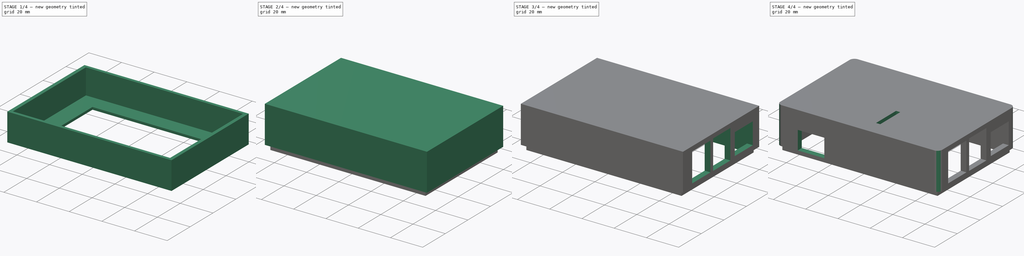
[diagram: build sequence overview — one tinted view per stage of 4, left to right]
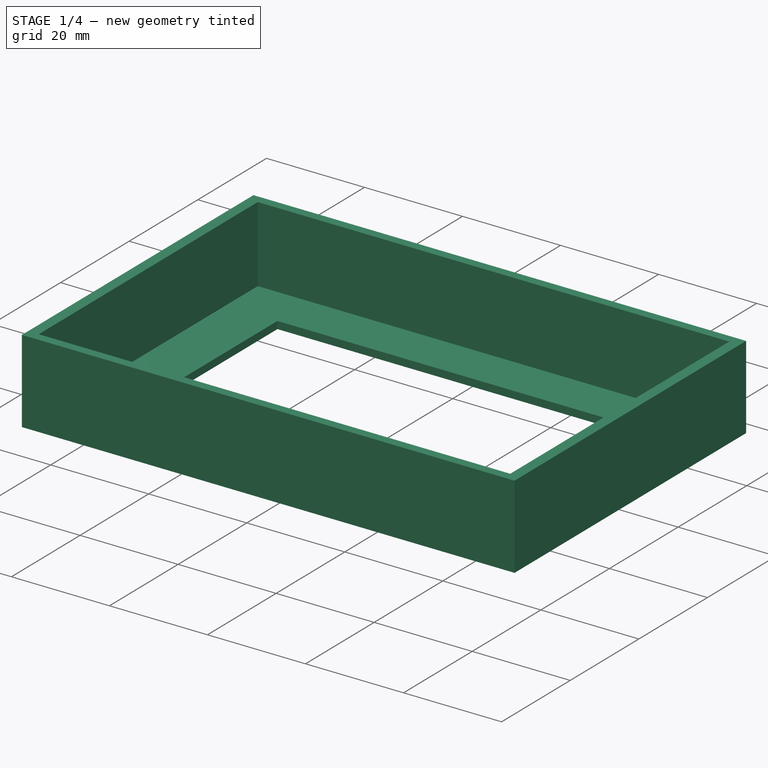
[diagram: stage 1 of 4 — iso view after this stage's code; geometry added in this stage tinted green]
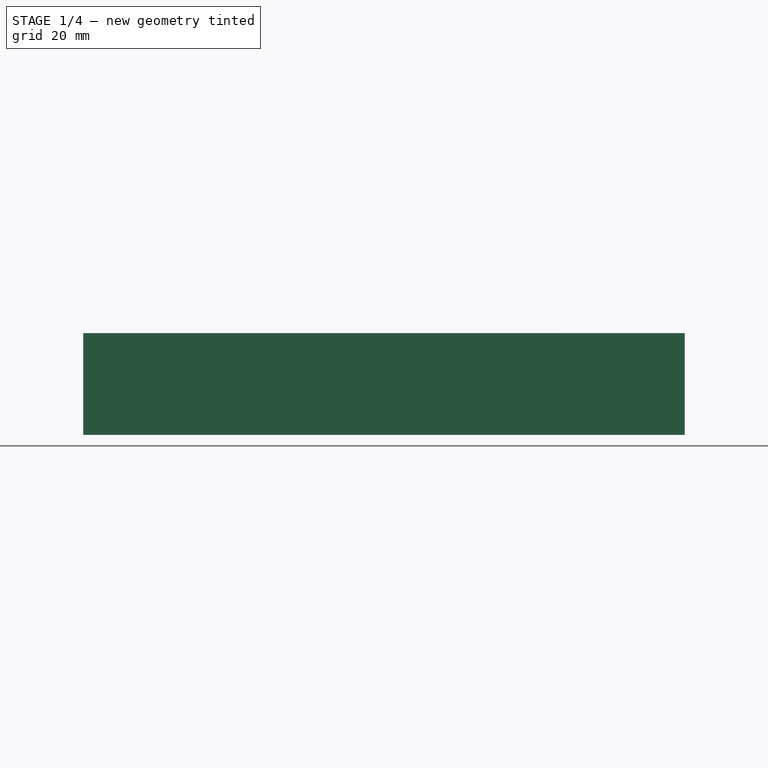
[diagram: stage 1 of 4 — front view after this stage's code; geometry added in this stage tinted green]
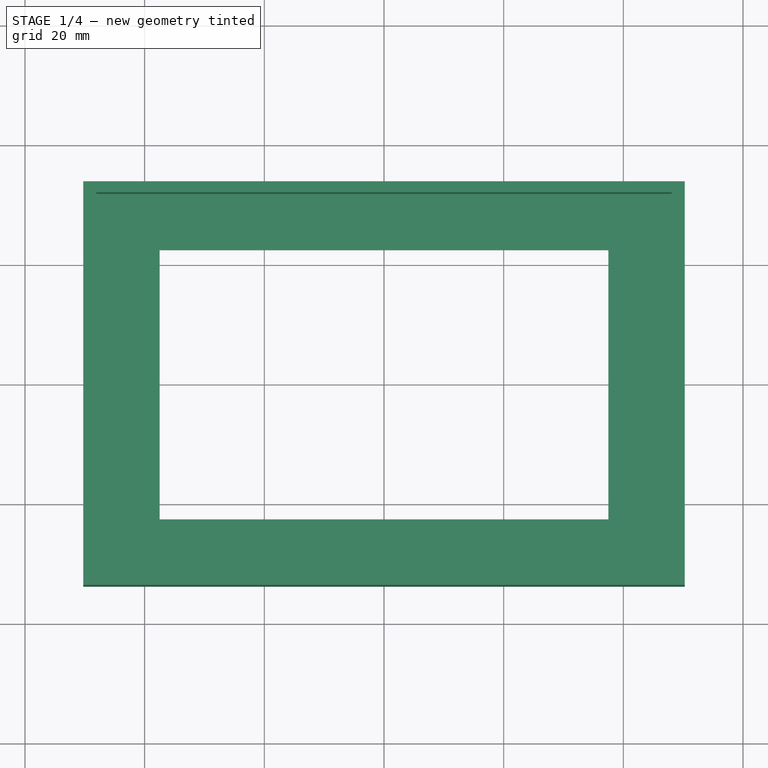
[diagram: stage 1 of 4 — top view after this stage's code; geometry added in this stage tinted green]
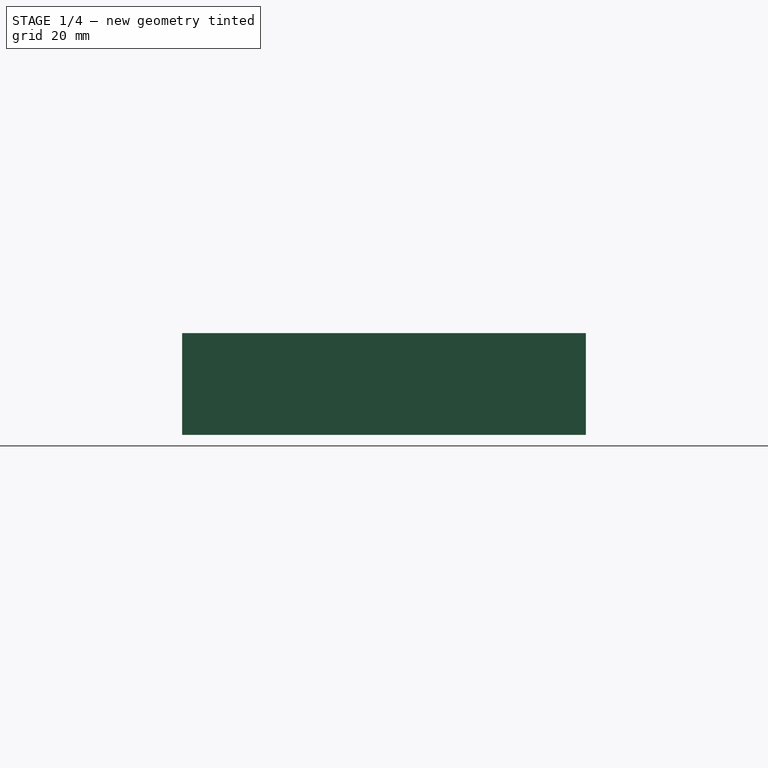
[diagram: stage 1 of 4 — right view after this stage's code; geometry added in this stage tinted green]
FCSTD DOCUMENT  (FreeCAD 0.19R21937 (Git))
Label: pi_touchscreen_enclosure
License: All rights reserved
LicenseURL: http://en.wikipedia.org/wiki/All_rights_reserved
objects: Sketcher::SketchObject×9, PartDesign::Pocket×6, PartDesign::Pad×3, PartDesign::Fillet×2, PartDesign::Body×2, Part::Feature×1, PartDesign::ShapeBinder×1
note: 35 computed .brp shape members not serialized (recipe doc carries the construction recipe); baked Part::Feature solids carry a one-line shape summary decoded from their .brp

FEATURE [Sketcher::SketchObject] Sketch
  MapMode = 5
  Support = -> [XY_Plane]
  sketch-geometry (4):
    g0: LineSegment StartX=-50.2548 StartY=33.7344 StartZ=0 EndX=50.2548 EndY=33.7344 EndZ=0
    g1: LineSegment StartX=50.2548 StartY=33.7344 StartZ=0 EndX=50.2548 EndY=-33.7344 EndZ=0
    g2: LineSegment StartX=50.2548 StartY=-33.7344 StartZ=0 EndX=-50.2548 EndY=-33.7344 EndZ=0
    g3: LineSegment StartX=-50.2548 StartY=-33.7344 StartZ=0 EndX=-50.2548 EndY=33.7344 EndZ=0
  constraints (9):
    c: Coincident(g0,g1)
    c: Coincident(g1,g2)
    c: Coincident(g2,g3)
    c: Coincident(g3,g0)
    c: Horizontal(g0)
    c: Horizontal(g2)
    c: Vertical(g1)
    c: Vertical(g3)
    c: Symmetric(g0,g1,g-1)
FEATURE [PartDesign::Pad] Pad
  AllowMultiFace = false
  Length = 17
  Length2 = 100
  Profile = -> Sketch
  Type = 0
FEATURE [Sketcher::SketchObject] Sketch001
  MapMode = 5
  Placement = pos=(0,0,17) rot=(0,0,1;0rad)
  Support = -> [Pad]
  sketch-geometry (4):
    g0: LineSegment StartX=-48.1 StartY=31.9 StartZ=0 EndX=48.1 EndY=31.9 EndZ=0
    g1: LineSegment StartX=48.1 StartY=31.9 StartZ=0 EndX=48.1 EndY=-31.9 EndZ=0
    g2: LineSegment StartX=48.1 StartY=-31.9 StartZ=0 EndX=-48.1 EndY=-31.9 EndZ=0
    g3: LineSegment StartX=-48.1 StartY=-31.9 StartZ=0 EndX=-48.1 EndY=31.9 EndZ=0
  constraints (11):
    c: Coincident(g0,g1)
    c: Coincident(g1,g2)
    c: Coincident(g2,g3)
    c: Coincident(g3,g0)
    c: Horizontal(g0)
    c: Horizontal(g2)
    c: Vertical(g1)
    c: Vertical(g3)
    c: Symmetric(g0,g1,g-1)
    c: DistanceX(g0,g0) = 96.2
    c: DistanceY(g3,g3) = 63.8
FEATURE [PartDesign::Pocket] Pocket
  AllowMultiFace = false
  BaseFeature = -> Pad
  Length = 15.5
  Length2 = 100
  Profile = -> Sketch001
  Type = 0
FEATURE [Sketcher::SketchObject] Sketch002
  MapMode = 5
  Placement = pos=(0,0,1.5) rot=(0,0,1;0rad)
  Support = -> [Pocket]
  sketch-geometry (4):
    g0: LineSegment StartX=-37.5 StartY=22.5 StartZ=0 EndX=37.5 EndY=22.5 EndZ=0
    g1: LineSegment StartX=37.5 StartY=22.5 StartZ=0 EndX=37.5 EndY=-22.5 EndZ=0
    g2: LineSegment StartX=37.5 StartY=-22.5 StartZ=0 EndX=-37.5 EndY=-22.5 EndZ=0
    g3: LineSegment StartX=-37.5 StartY=-22.5 StartZ=0 EndX=-37.5 EndY=22.5 EndZ=0
  constraints (11):
    c: Coincident(g0,g1)
    c: Coincident(g1,g2)
    c: Coincident(g2,g3)
    c: Coincident(g3,g0)
    c: Horizontal(g0)
    c: Horizontal(g2)
    c: Vertical(g1)
    c: Vertical(g3)
    c: Symmetric(g0,g1,g-1)
    c: DistanceX(g0,g0) = 75
    c: DistanceY(g3,g3) = 45
FEATURE [PartDesign::Pocket] Pocket001
  AllowMultiFace = false
  BaseFeature = -> Pocket
  Length = 1.5
  Length2 = 100
  Profile = -> Sketch002
  Type = 0
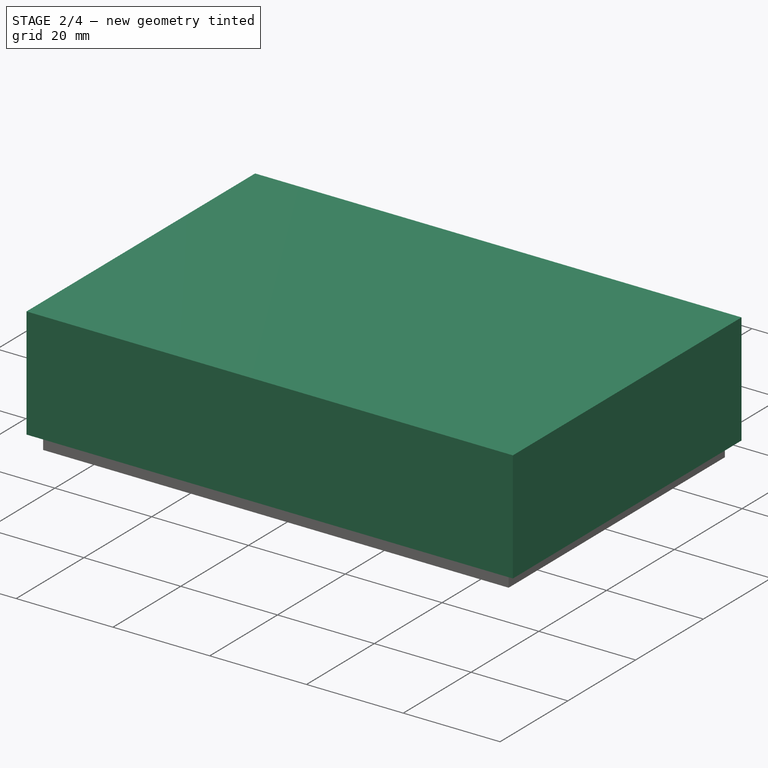
[diagram: stage 2 of 4 — iso view after this stage's code; geometry added in this stage tinted green]
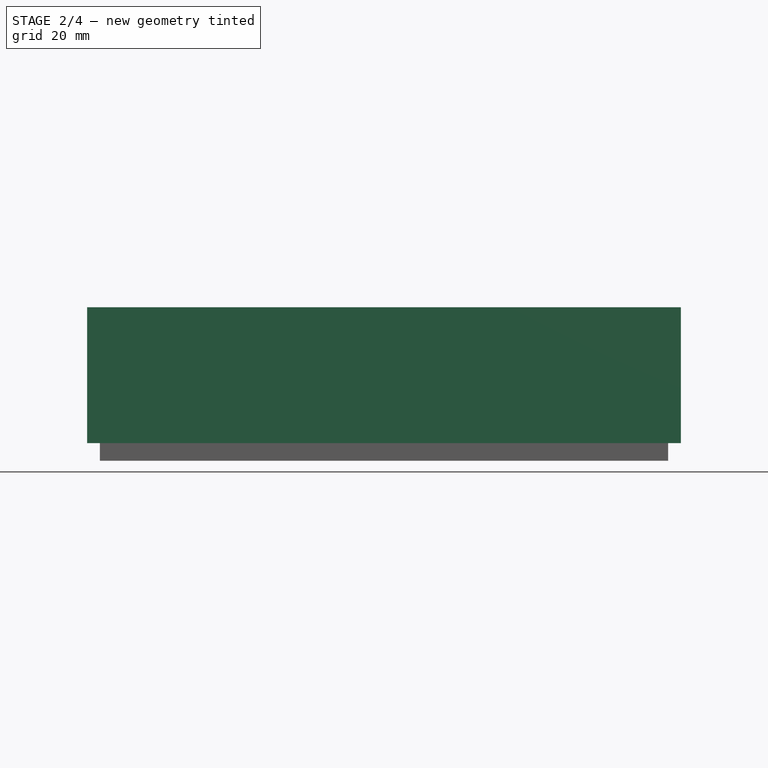
[diagram: stage 2 of 4 — front view after this stage's code; geometry added in this stage tinted green]
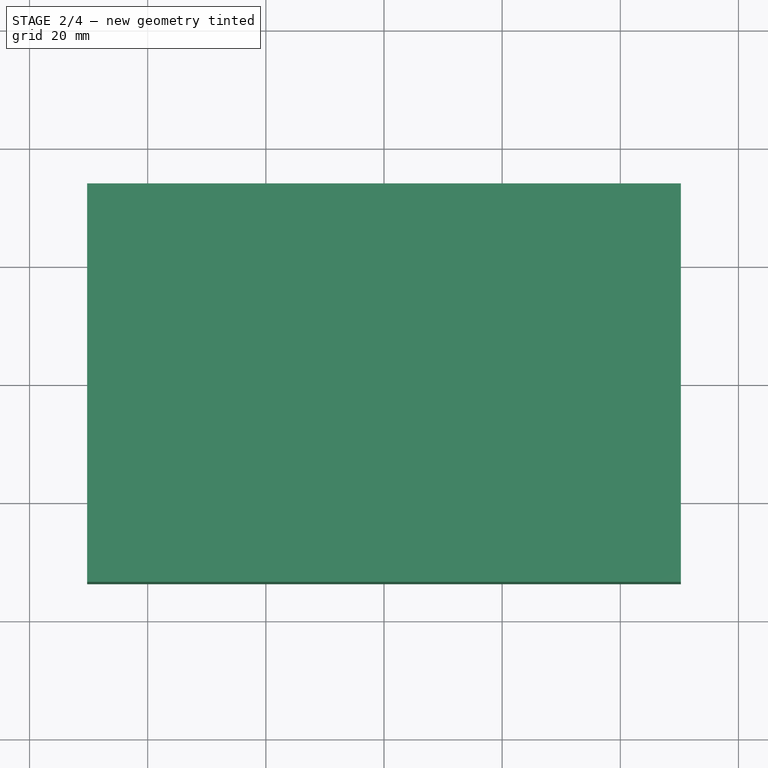
[diagram: stage 2 of 4 — top view after this stage's code; geometry added in this stage tinted green]
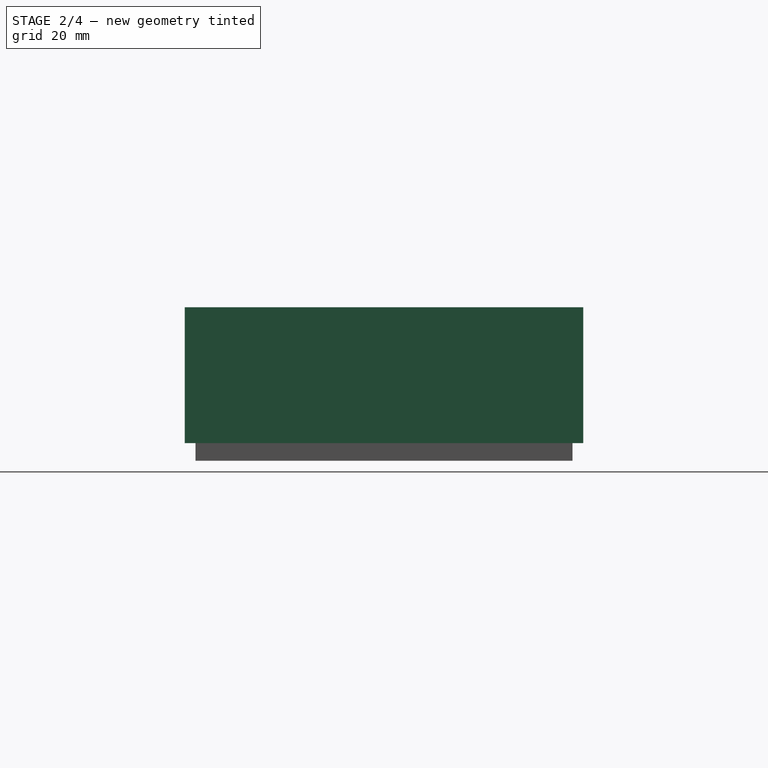
[diagram: stage 2 of 4 — right view after this stage's code; geometry added in this stage tinted green]
FEATURE [PartDesign::Fillet] Fillet
  Base = -> Pocket001 [Edge8,Edge2,Edge1,Edge5]
  BaseFeature = -> Pocket001
  Radius = 3
  SupportTransform = false
FEATURE [PartDesign::Body] Body
  Group = -> [Sketch,Pad,Sketch001,Pocket,Sketch002,Pocket001,Fillet]
  Origin = -> Origin
  Tip = -> Fillet
FEATURE [Part::Feature] Part__Feature  label="Raspberry Pi 4 B"
  Placement = pos=(6,-12,18) rot=(0,0,1;0rad)
  shape: bbox 87.43 x 59.12 x 19.53 mm, 1311 faces, 0 solids (baked)
FEATURE [PartDesign::ShapeBinder] ShapeBinder
  Support = -> [Fillet]
  TraceSupport = false
FEATURE [Sketcher::SketchObject] Sketch003
  ExternalGeometry = -> [ShapeBinder]
  MapMode = 5
  Placement = pos=(0,0,17) rot=(0,0,1;0rad)
  Support = -> [ShapeBinder]
  sketch-geometry (4):
    g0: LineSegment StartX=-50.2548 StartY=33.7344 StartZ=0 EndX=50.2548 EndY=33.7344 EndZ=0
    g1: LineSegment StartX=50.2548 StartY=33.7344 StartZ=0 EndX=50.2548 EndY=-33.7344 EndZ=0
    g2: LineSegment StartX=50.2548 StartY=-33.7344 StartZ=0 EndX=-50.2548 EndY=-33.7344 EndZ=0
    g3: LineSegment StartX=-50.2548 StartY=-33.7344 StartZ=0 EndX=-50.2548 EndY=33.7344 EndZ=0
  constraints (12):
    c: Coincident(g0,g1)
    c: Coincident(g1,g2)
    c: Coincident(g2,g3)
    c: Coincident(g3,g0)
    c: Horizontal(g0)
    c: Horizontal(g2)
    c: Vertical(g1)
    c: Vertical(g3)
    c: PointOnObject(g-8,g3)
    c: PointOnObject(g-7,g0)
    c: PointOnObject(g-10,g1)
    c: PointOnObject(g-9,g2)
FEATURE [PartDesign::Pad] Pad001
  AllowMultiFace = false
  Length = 23
  Length2 = 100
  Profile = -> Sketch003
  Type = 0
FEATURE [Sketcher::SketchObject] Sketch004
  ExternalGeometry = -> [ShapeBinder]
  MapMode = 5
  Placement = pos=(0,0,17) rot=(1,0,0;3.14159rad)
  Support = -> [Pad001]
  sketch-geometry (4):
    g0: LineSegment StartX=-48.1 StartY=31.9 StartZ=0 EndX=48.1 EndY=31.9 EndZ=0
    g1: LineSegment StartX=48.1 StartY=31.9 StartZ=0 EndX=48.1 EndY=-31.9 EndZ=0
    g2: LineSegment StartX=48.1 StartY=-31.9 StartZ=0 EndX=-48.1 EndY=-31.9 EndZ=0
    g3: LineSegment StartX=-48.1 StartY=-31.9 StartZ=0 EndX=-48.1 EndY=31.9 EndZ=0
  constraints (8):
    c: Coincident(g0,g1)
    c: Coincident(g1,g2)
    c: Coincident(g2,g3)
    c: Coincident(g3,g0)
    c: Horizontal(g0)
    c: Horizontal(g2)
    c: Vertical(g1)
    c: Vertical(g3)
FEATURE [PartDesign::Pad] Pad002
  AllowMultiFace = false
  BaseFeature = -> Pad001
  Length = 3
  Length2 = 100
  Profile = -> Sketch004
  Type = 0
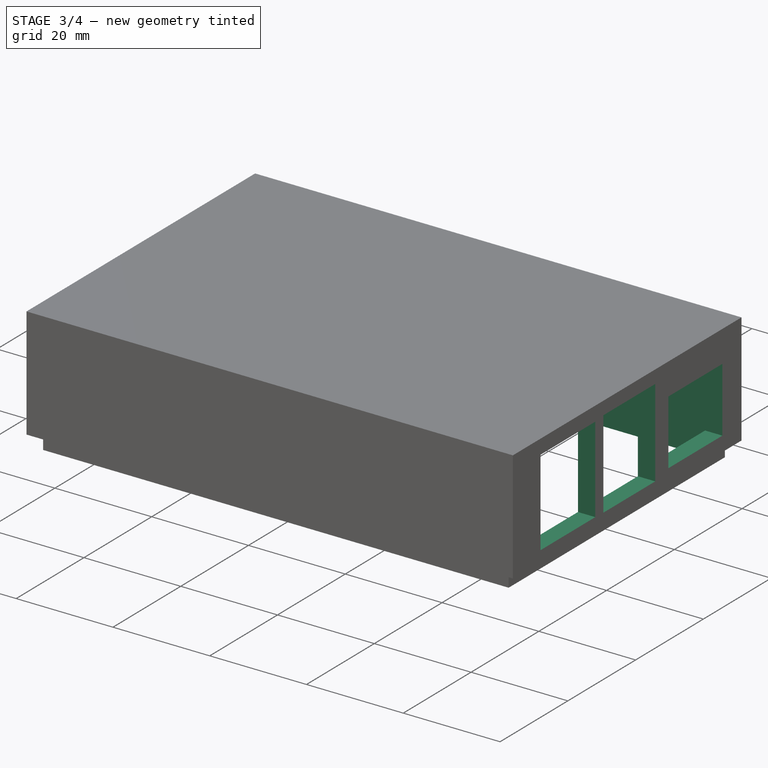
[diagram: stage 3 of 4 — iso view after this stage's code; geometry added in this stage tinted green]
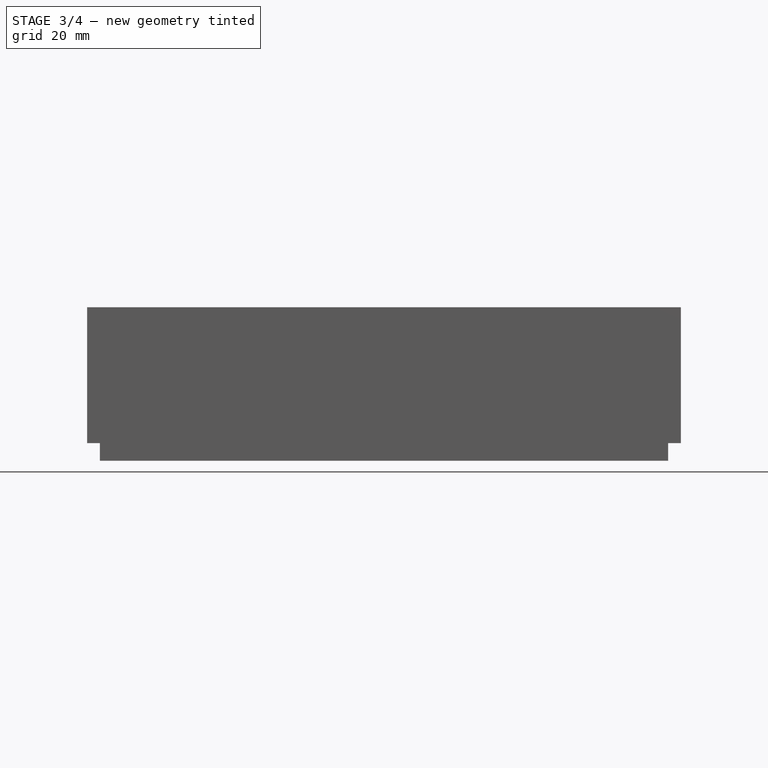
[diagram: stage 3 of 4 — front view after this stage's code; geometry added in this stage tinted green]
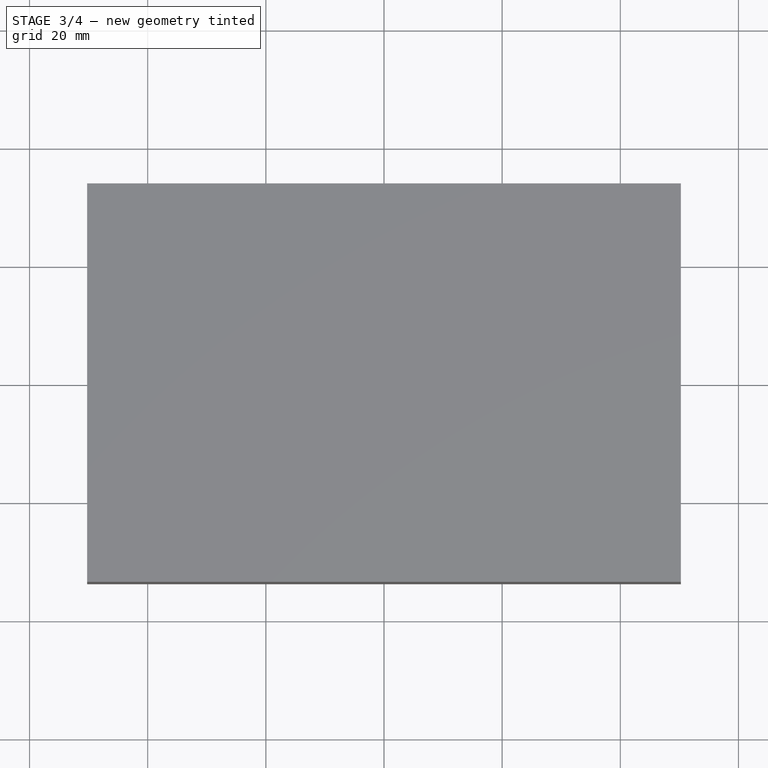
[diagram: stage 3 of 4 — top view after this stage's code; geometry added in this stage tinted green]
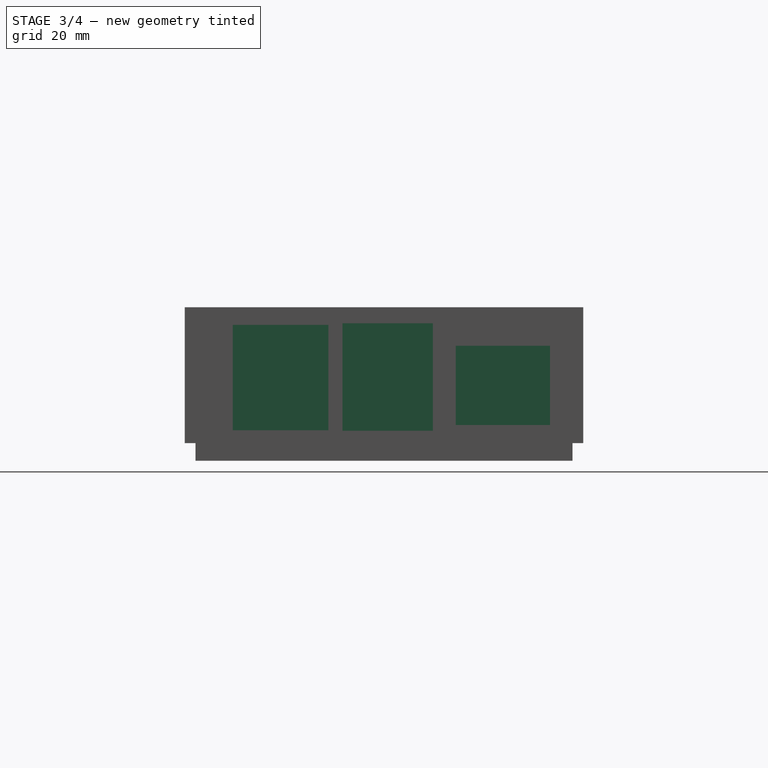
[diagram: stage 3 of 4 — right view after this stage's code; geometry added in this stage tinted green]
FEATURE [Sketcher::SketchObject] Sketch005
  MapMode = 5
  Placement = pos=(0,0,14) rot=(1,0,0;3.14159rad)
  Support = -> [Pad002]
  sketch-geometry (4):
    g0: LineSegment StartX=-46.6727 StartY=30.2147 StartZ=0 EndX=46.6727 EndY=30.2147 EndZ=0
    g1: LineSegment StartX=46.6727 StartY=30.2147 StartZ=0 EndX=46.6727 EndY=-30.2147 EndZ=0
    g2: LineSegment StartX=46.6727 StartY=-30.2147 StartZ=0 EndX=-46.6727 EndY=-30.2147 EndZ=0
    g3: LineSegment StartX=-46.6727 StartY=-30.2147 StartZ=0 EndX=-46.6727 EndY=30.2147 EndZ=0
  constraints (9):
    c: Coincident(g0,g1)
    c: Coincident(g1,g2)
    c: Coincident(g2,g3)
    c: Coincident(g3,g0)
    c: Horizontal(g0)
    c: Horizontal(g2)
    c: Vertical(g1)
    c: Vertical(g3)
    c: Symmetric(g0,g1,g-1)
FEATURE [PartDesign::Pocket] Pocket002
  AllowMultiFace = false
  BaseFeature = -> Pad002
  Length = 23
  Length2 = 100
  Profile = -> Sketch005
  Type = 0
FEATURE [Sketcher::SketchObject] Sketch006
  MapMode = 5
  Placement = pos=(50.2548,0,0) rot=(0.57735,0.57735,0.57735;2.0944rad)
  Support = -> [Pocket002]
  sketch-geometry (12):
    g0: LineSegment StartX=-25.6011 StartY=37.003 StartZ=0 EndX=-9.41268 EndY=37.003 EndZ=0
    g1: LineSegment StartX=-9.41268 StartY=37.003 StartZ=0 EndX=-9.41268 EndY=19.1723 EndZ=0
    g2: LineSegment StartX=-9.41268 StartY=19.1723 StartZ=0 EndX=-25.6011 EndY=19.1723 EndZ=0
    g3: LineSegment StartX=-25.6011 StartY=19.1723 StartZ=0 EndX=-25.6011 EndY=37.003 EndZ=0
    g4: LineSegment StartX=-7.02736 StartY=37.2911 StartZ=0 EndX=8.28375 EndY=37.2911 EndZ=0
    g5: LineSegment StartX=8.28375 StartY=37.2911 StartZ=0 EndX=8.28375 EndY=19.0912 EndZ=0
    g6: LineSegment StartX=8.28375 StartY=19.0912 StartZ=0 EndX=-7.02736 EndY=19.0912 EndZ=0
    g7: LineSegment StartX=-7.02736 StartY=19.0912 StartZ=0 EndX=-7.02736 EndY=37.2911 EndZ=0
    g8: LineSegment StartX=12.153 StartY=33.4664 StartZ=0 EndX=28.1042 EndY=33.4664 EndZ=0
    g9: LineSegment StartX=28.1042 StartY=33.4664 StartZ=0 EndX=28.1042 EndY=20.0652 EndZ=0
    g10: LineSegment StartX=28.1042 StartY=20.0652 StartZ=0 EndX=12.153 EndY=20.0652 EndZ=0
    g11: LineSegment StartX=12.153 StartY=20.0652 StartZ=0 EndX=12.153 EndY=33.4664 EndZ=0
  constraints (24):
    c: Coincident(g0,g1)
    c: Coincident(g1,g2)
    c: Coincident(g2,g3)
    c: Coincident(g3,g0)
    c: Horizontal(g0)
    c: Horizontal(g2)
    c: Vertical(g1)
    c: Vertical(g3)
    c: Coincident(g4,g5)
    c: Coincident(g5,g6)
    c: Coincident(g6,g7)
    c: Coincident(g7,g4)
    c: Horizontal(g4)
    c: Horizontal(g6)
    c: Vertical(g5)
    c: Vertical(g7)
    c: Coincident(g8,g9)
    c: Coincident(g9,g10)
    c: Coincident(g10,g11)
    c: Coincident(g11,g8)
    c: Horizontal(g8)
    c: Horizontal(g10)
    c: Vertical(g9)
    c: Vertical(g11)
FEATURE [PartDesign::Pocket] Pocket003
  AllowMultiFace = false
  BaseFeature = -> Pocket002
  Length = 5
  Length2 = 100
  Profile = -> Sketch006
  Type = 0
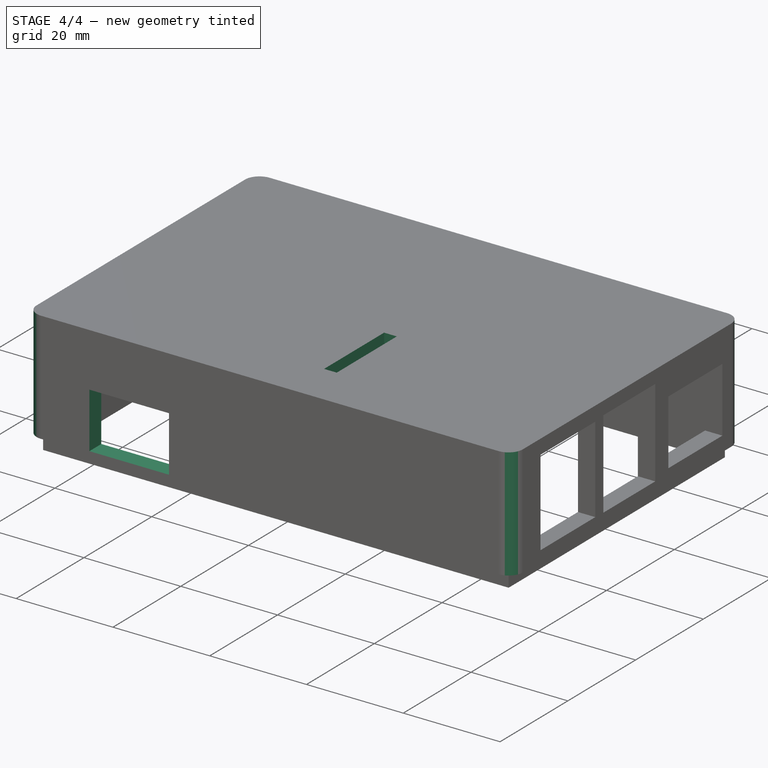
[diagram: stage 4 of 4 — iso view after this stage's code; geometry added in this stage tinted green]
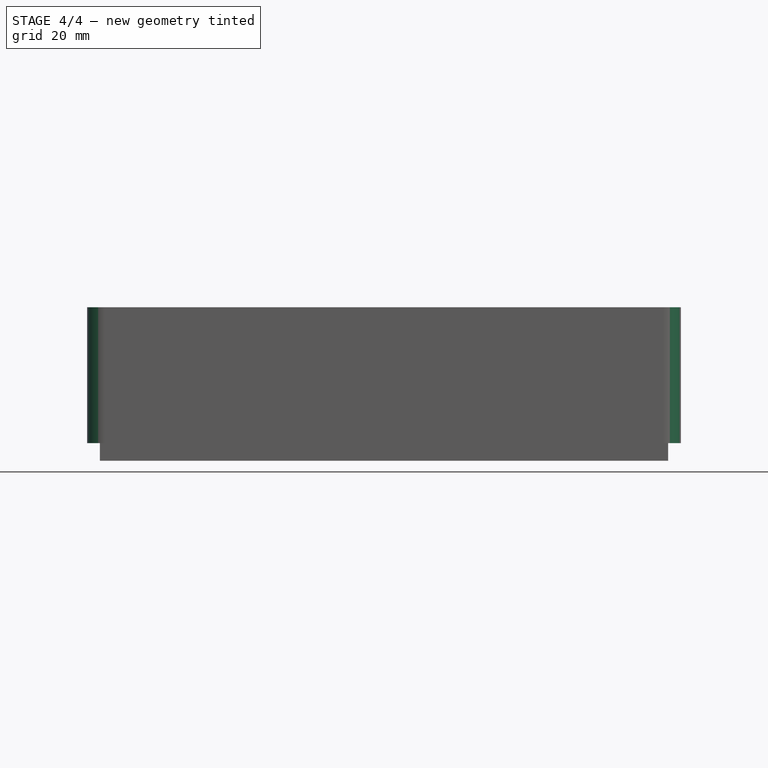
[diagram: stage 4 of 4 — front view after this stage's code; geometry added in this stage tinted green]
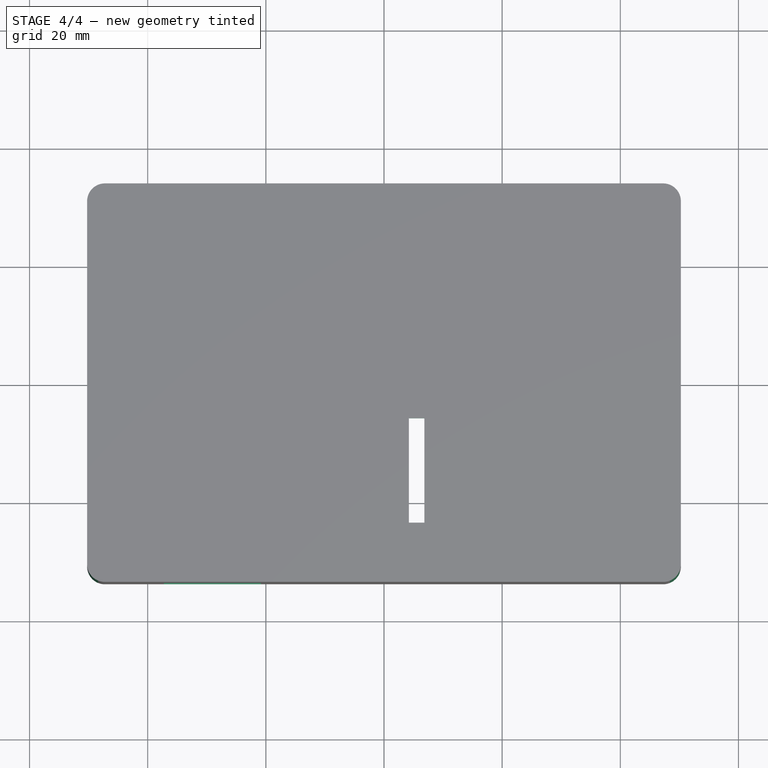
[diagram: stage 4 of 4 — top view after this stage's code; geometry added in this stage tinted green]
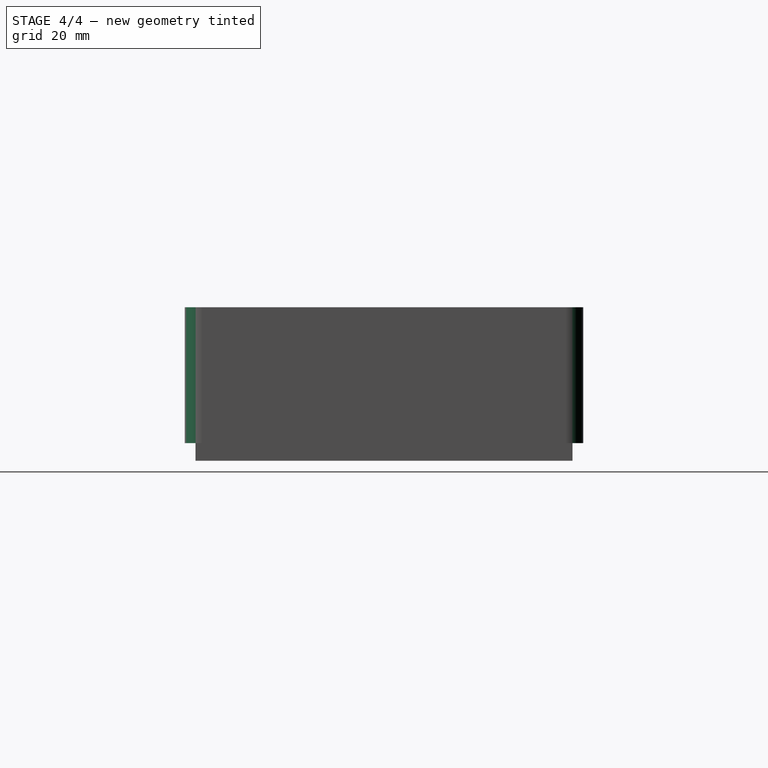
[diagram: stage 4 of 4 — right view after this stage's code; geometry added in this stage tinted green]
FEATURE [Sketcher::SketchObject] Sketch007
  ExternalGeometry = -> [Sketch003]
  MapMode = 5
  Placement = pos=(0,-33.7344,0) rot=(1,0,0;1.5708rad)
  Support = -> [Pocket003]
  sketch-geometry (4):
    g0: LineSegment StartX=-37.2635 StartY=28.8652 StartZ=0 EndX=-20.8185 EndY=28.8652 EndZ=0
    g1: LineSegment StartX=-20.8185 StartY=28.8652 StartZ=0 EndX=-20.8185 EndY=17.3735 EndZ=0
    g2: LineSegment StartX=-37.2635 StartY=17.3735 StartZ=0 EndX=-37.2635 EndY=28.8652 EndZ=0
    g3: LineSegment StartX=-37.2635 StartY=17.3735 StartZ=0 EndX=-20.8185 EndY=17.3735 EndZ=0
  constraints (8):
    c: Coincident(g0,g1)
    c: Coincident(g2,g0)
    c: Horizontal(g0)
    c: Vertical(g1)
    c: Vertical(g2)
    c: Coincident(g3,g2)
    c: Horizontal(g3)
    c: Coincident(g1,g3)
FEATURE [PartDesign::Pocket] Pocket004
  AllowMultiFace = false
  BaseFeature = -> Pocket003
  Length = 5
  Length2 = 100
  Profile = -> Sketch007
  Type = 0
FEATURE [Sketcher::SketchObject] Sketch008
  MapMode = 5
  Placement = pos=(0,0,40) rot=(0,0,1;0rad)
  Support = -> [Pocket004]
  sketch-geometry (4):
    g0: LineSegment StartX=4.20985 StartY=-5.97927 StartZ=0 EndX=6.82835 EndY=-5.97927 EndZ=0
    g1: LineSegment StartX=6.82835 StartY=-5.97927 StartZ=0 EndX=6.82835 EndY=-23.6928 EndZ=0
    g2: LineSegment StartX=6.82835 StartY=-23.6928 StartZ=0 EndX=4.20985 EndY=-23.6928 EndZ=0
    g3: LineSegment StartX=4.20985 StartY=-23.6928 StartZ=0 EndX=4.20985 EndY=-5.97927 EndZ=0
  constraints (8):
    c: Coincident(g0,g1)
    c: Coincident(g1,g2)
    c: Coincident(g2,g3)
    c: Coincident(g3,g0)
    c: Horizontal(g0)
    c: Horizontal(g2)
    c: Vertical(g1)
    c: Vertical(g3)
FEATURE [PartDesign::Pocket] Pocket005
  AllowMultiFace = false
  BaseFeature = -> Pocket004
  Length = 5
  Length2 = 100
  Profile = -> Sketch008
  Type = 0
FEATURE [PartDesign::Fillet] Fillet001
  Base = -> Pocket005 [Edge2,Edge10,Edge5,Edge1]
  BaseFeature = -> Pocket005
  Radius = 3
  SupportTransform = false
FEATURE [PartDesign::Body] Body001
  Group = -> [ShapeBinder,Sketch003,Pad001,Sketch004,Pad002,Sketch005,Pocket002,Sketch006,Pocket003,Sketch007,Pocket004,Sketch008,Pocket005,Fillet001]
  Origin = -> Origin001
  Tip = -> Fillet001
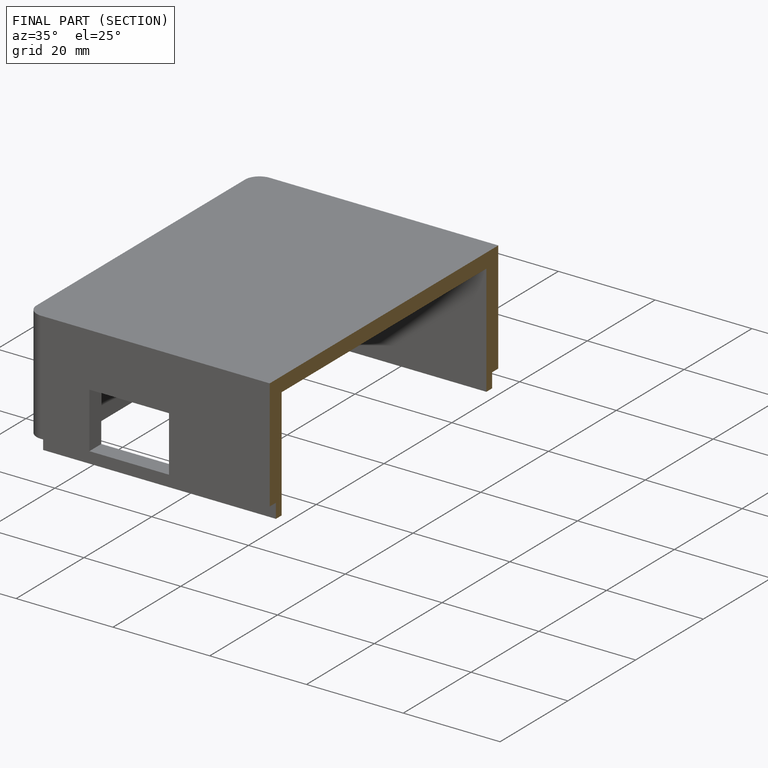
[diagram: finished part — half-section view (interior)]
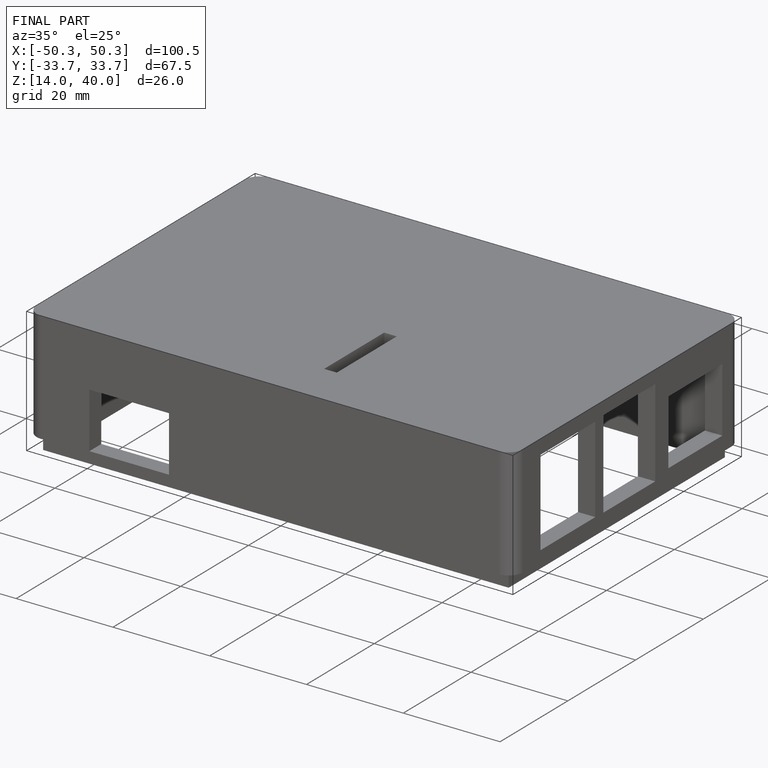
[diagram: finished part — iso view with bounding-box wireframe]
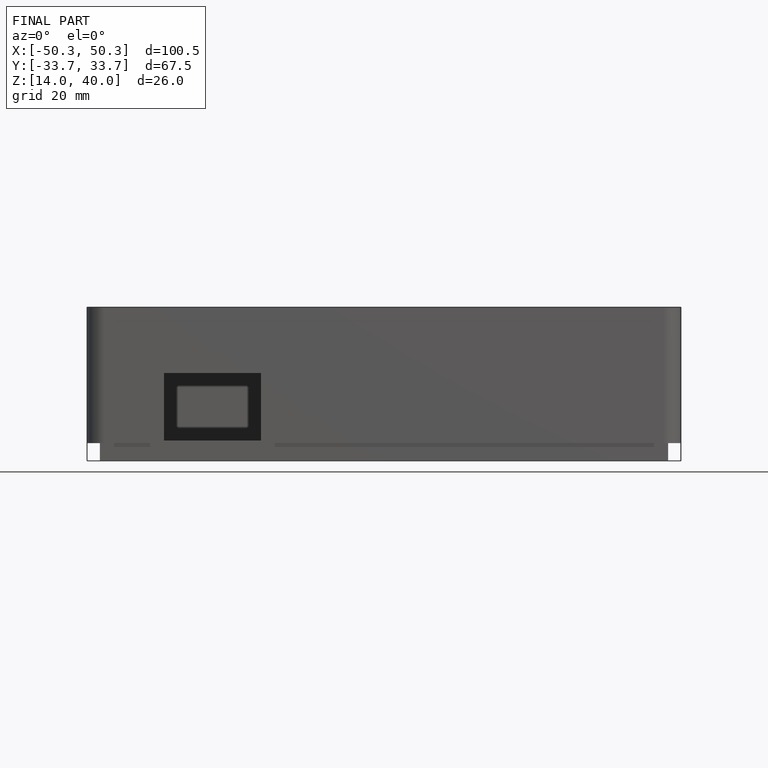
[diagram: finished part — front view with bounding-box wireframe]
